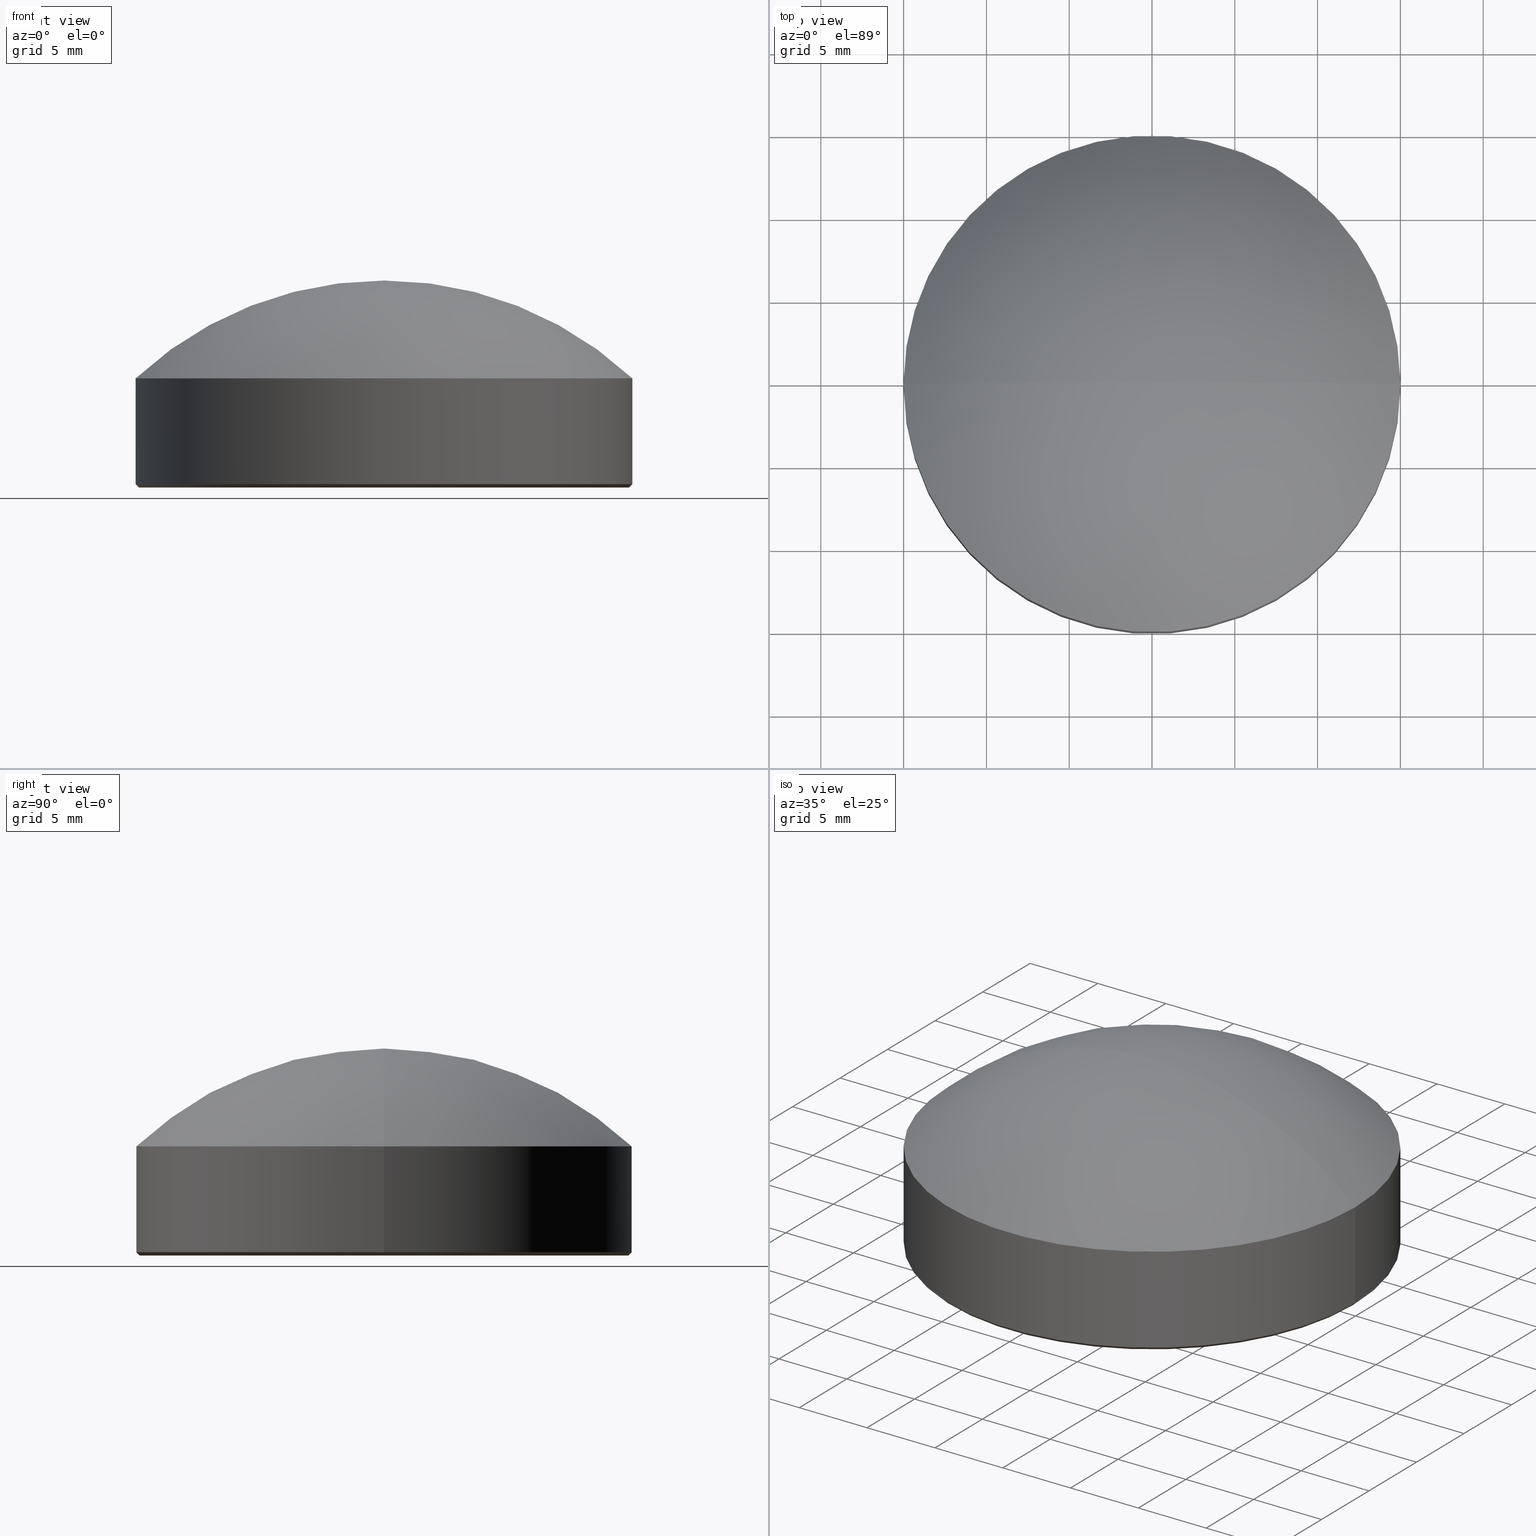
[diagram: canonical four-view strip — front | top / right | iso, engineering-drawing reading convention]
A machine part, canonical four-view strip (front | top / right | iso — engineering-drawing reading convention). The complete STEP part file that produces these views, byte-faithful:
ISO-10303-21;
HEADER;
FILE_DESCRIPTION (( 'STEP AP214' ),
    '1' );
FILE_NAME ('GLA11-030-030-H-VIS.STEP',
    '2024-08-09T08:39:17',
    ( 'Windows User' ),
    ( 'P R C' ),
    'SwSTEP 2.0',
    'SolidWorks 2022',
    '' );
FILE_SCHEMA (( 'AUTOMOTIVE_DESIGN' ));
ENDSEC;

DATA;
#1 = MANIFOLD_SOLID_BREP ( '����1', #129 ) ;
#2 = DIRECTION ( 'NONE',  ( -1.000000000000000000, 0.000000000000000000, 0.000000000000000000 ) ) ;
#3 = AXIS2_PLACEMENT_3D ( 'NONE', #115, #163, #85 ) ;
#4 = DIRECTION ( 'NONE',  ( 1.000000000000000000, 0.000000000000000000, 0.000000000000000000 ) ) ;
#5 = UNCERTAINTY_MEASURE_WITH_UNIT (LENGTH_MEASURE( 1.000000000000000082E-05 ), #164, 'distance_accuracy_value', 'NONE');
#6 = VERTEX_POINT ( 'NONE', #12 ) ;
#7 = ORIENTED_EDGE ( 'NONE', *, *, #154, .T. ) ;
#8 = CIRCLE ( 'NONE', #120, 15.00000000000000000 ) ;
#9 = PRESENTATION_STYLE_ASSIGNMENT (( #109 ) ) ;
#10 = LINE ( 'NONE', #189, #18 ) ;
#11 = DIRECTION ( 'NONE',  ( 1.000000000000000000, 0.000000000000000000, 0.000000000000000000 ) ) ;
#12 = CARTESIAN_POINT ( 'NONE',  ( -14.80000000000000604, 1.824723730729556626E-15, 0.000000000000000000 ) ) ;
#13 = COLOUR_RGB ( '',1.000000000000000000, 1.000000000000000000, 1.000000000000000000 ) ;
#14 = EDGE_CURVE ( 'NONE', #171, #188, #201, .T. ) ;
#15 = DIRECTION ( 'NONE',  ( 1.000000000000000000, 0.000000000000000000, 0.000000000000000000 ) ) ;
#16 = SPHERICAL_SURFACE ( 'NONE', #160, 21.99053299492385349 ) ;
#17 = UNCERTAINTY_MEASURE_WITH_UNIT (LENGTH_MEASURE( 1.000000000000000082E-05 ), #143, 'distance_accuracy_value', 'NONE');
#18 = VECTOR ( 'NONE', #144, 1000.000000000000000 ) ;
#19 = VECTOR ( 'NONE', #64, 1000.000000000000000 ) ;
#20 = LINE ( 'NONE', #213, #19 ) ;
#21 = DIRECTION ( 'NONE',  ( 0.7071067811865414665, 0.000000000000000000, 0.7071067811865536790 ) ) ;
#22 = APPLICATION_CONTEXT ( 'automotive_design' ) ;
#23 = VERTEX_POINT ( 'NONE', #56 ) ;
#24 = ADVANCED_FACE ( 'NONE', ( #192 ), #112, .T. ) ;
#25 = ORIENTED_EDGE ( 'NONE', *, *, #69, .F. ) ;
#26 = CARTESIAN_POINT ( 'NONE',  ( 0.000000000000000000, 0.000000000000000000, 6.589999999999999858 ) ) ;
#27 = EDGE_LOOP ( 'NONE', ( #63, #79, #51 ) ) ;
#28 =( NAMED_UNIT ( * ) SI_UNIT ( $, .STERADIAN. ) SOLID_ANGLE_UNIT ( ) );
#29 = EDGE_CURVE ( 'NONE', #32, #23, #98, .T. ) ;
#30 = DIRECTION ( 'NONE',  ( 1.000000000000000000, 0.000000000000000000, 0.000000000000000000 ) ) ;
#31 = CARTESIAN_POINT ( 'NONE',  ( 0.000000000000000000, 0.000000000000000000, 6.589999999999999858 ) ) ;
#32 = VERTEX_POINT ( 'NONE', #142 ) ;
#33 = FACE_OUTER_BOUND ( 'NONE', #37, .T. ) ;
#34 = DIRECTION ( 'NONE',  ( -0.000000000000000000, -0.000000000000000000, 1.000000000000000000 ) ) ;
#35 = CIRCLE ( 'NONE', #95, 15.00000000000000000 ) ;
#36 = EDGE_CURVE ( 'NONE', #170, #6, #73, .T. ) ;
#37 = EDGE_LOOP ( 'NONE', ( #92, #25, #196, #183 ) ) ;
#38 =( GEOMETRIC_REPRESENTATION_CONTEXT ( 3 ) GLOBAL_UNCERTAINTY_ASSIGNED_CONTEXT ( ( #5 ) ) GLOBAL_UNIT_ASSIGNED_CONTEXT ( ( #164, #182, #59 ) ) REPRESENTATION_CONTEXT ( 'NONE', 'WORKASPACE' ) );
#39 = CIRCLE ( 'NONE', #82, 14.80000000000000604 ) ;
#40 = ORIENTED_EDGE ( 'NONE', *, *, #167, .T. ) ;
#41 = DIRECTION ( 'NONE',  ( 1.000000000000000000, -1.224646799147353207E-16, 0.000000000000000000 ) ) ;
#42 = SURFACE_SIDE_STYLE ('',( #93 ) ) ;
#43 = AXIS2_PLACEMENT_3D ( 'NONE', #31, #176, #96 ) ;
#44 = DIRECTION ( 'NONE',  ( 1.000000000000000000, 0.000000000000000000, 0.000000000000000000 ) ) ;
#45 = CARTESIAN_POINT ( 'NONE',  ( 15.00000000000000000, 1.836970198721029589E-15, 0.1999999999999970690 ) ) ;
#46 = ADVANCED_BREP_SHAPE_REPRESENTATION ( 'GLA11-030-030-H-VIS', ( #1, #117 ), #38 ) ;
#47 = DIRECTION ( 'NONE',  ( 1.000000000000000000, 0.000000000000000000, 0.000000000000000000 ) ) ;
#48 = AXIS2_PLACEMENT_3D ( 'NONE', #204, #128, #41 ) ;
#49 = PRESENTATION_STYLE_ASSIGNMENT (( #138 ) ) ;
#50 = EDGE_CURVE ( 'NONE', #6, #170, #39, .T. ) ;
#51 = ORIENTED_EDGE ( 'NONE', *, *, #154, .F. ) ;
#52 = AXIS2_PLACEMENT_3D ( 'NONE', #149, #131, #197 ) ;
#53 = ORIENTED_EDGE ( 'NONE', *, *, #111, .F. ) ;
#54 = FACE_OUTER_BOUND ( 'NONE', #108, .T. ) ;
#55 = EDGE_LOOP ( 'NONE', ( #71, #72, #7 ) ) ;
#56 = CARTESIAN_POINT ( 'NONE',  ( -15.00000000000000000, 0.000000000000000000, 0.1999999999999970690 ) ) ;
#57 = AXIS2_PLACEMENT_3D ( 'NONE', #77, #133, #199 ) ;
#58 = EDGE_CURVE ( 'NONE', #171, #191, #10, .T. ) ;
#59 =( NAMED_UNIT ( * ) SI_UNIT ( $, .STERADIAN. ) SOLID_ANGLE_UNIT ( ) );
#60 = ORIENTED_EDGE ( 'NONE', *, *, #111, .T. ) ;
#61 = CARTESIAN_POINT ( 'NONE',  ( 0.000000000000000000, 0.000000000000000000, -9.490532994923851717 ) ) ;
#62 = COLOUR_RGB ( '',1.000000000000000000, 1.000000000000000000, 1.000000000000000000 ) ;
#63 = ORIENTED_EDGE ( 'NONE', *, *, #69, .T. ) ;
#64 = DIRECTION ( 'NONE',  ( -0.7071067811865414665, 8.659560562354857670E-17, 0.7071067811865536790 ) ) ;
#65 = ORIENTED_EDGE ( 'NONE', *, *, #203, .F. ) ;
#66 = DIRECTION ( 'NONE',  ( -1.000000000000000000, 0.000000000000000000, 0.000000000000000000 ) ) ;
#67 = DIRECTION ( 'NONE',  ( 0.000000000000000000, 1.000000000000000000, 0.000000000000000000 ) ) ;
#68 = PRODUCT_CONTEXT ( 'NONE', #22, 'mechanical' ) ;
#69 = EDGE_CURVE ( 'NONE', #32, #171, #211, .T. ) ;
#70 = FILL_AREA_STYLE ('',( #86 ) ) ;
#71 = ORIENTED_EDGE ( 'NONE', *, *, #14, .F. ) ;
#72 = ORIENTED_EDGE ( 'NONE', *, *, #161, .T. ) ;
#73 = CIRCLE ( 'NONE', #88, 14.80000000000000604 ) ;
#74 = ADVANCED_FACE ( 'NONE', ( #209 ), #212, .T. ) ;
#75 = CARTESIAN_POINT ( 'NONE',  ( -15.00000000000000000, 0.000000000000000000, 6.589999999999999858 ) ) ;
#76 = DIRECTION ( 'NONE',  ( 0.000000000000000000, 0.000000000000000000, 1.000000000000000000 ) ) ;
#77 = CARTESIAN_POINT ( 'NONE',  ( 0.000000000000000000, 0.000000000000000000, 6.589999999999999858 ) ) ;
#78 = PRESENTATION_LAYER_ASSIGNMENT (  '', '', ( #184 ) ) ;
#79 = ORIENTED_EDGE ( 'NONE', *, *, #14, .T. ) ;
#80 = CARTESIAN_POINT ( 'NONE',  ( 0.000000000000000000, 0.000000000000000000, -9.490532994923851717 ) ) ;
#81 = ADVANCED_FACE ( 'NONE', ( #54 ), #152, .T. ) ;
#82 = AXIS2_PLACEMENT_3D ( 'NONE', #126, #210, #11 ) ;
#83 = AXIS2_PLACEMENT_3D ( 'NONE', #214, #34, #15 ) ;
#84 = DIRECTION ( 'NONE',  ( -0.000000000000000000, -0.000000000000000000, 1.000000000000000000 ) ) ;
#85 = DIRECTION ( 'NONE',  ( 1.000000000000000000, 0.000000000000000000, 0.000000000000000000 ) ) ;
#86 = FILL_AREA_STYLE_COLOUR ( '', #62 ) ;
#87 = AXIS2_PLACEMENT_3D ( 'NONE', #26, #76, #97 ) ;
#88 = AXIS2_PLACEMENT_3D ( 'NONE', #159, #206, #30 ) ;
#89 = PRODUCT_DEFINITION_SHAPE ( 'NONE', 'NONE',  #91 ) ;
#90 = EDGE_LOOP ( 'NONE', ( #106, #113, #175, #158 ) ) ;
#91 = PRODUCT_DEFINITION ( 'δ֪', '', #166, #107 ) ;
#92 = ORIENTED_EDGE ( 'NONE', *, *, #58, .F. ) ;
#93 = SURFACE_STYLE_FILL_AREA ( #208 ) ;
#94 =( GEOMETRIC_REPRESENTATION_CONTEXT ( 3 ) GLOBAL_UNCERTAINTY_ASSIGNED_CONTEXT ( ( #17 ) ) GLOBAL_UNIT_ASSIGNED_CONTEXT ( ( #143, #145, #28 ) ) REPRESENTATION_CONTEXT ( 'NONE', 'WORKASPACE' ) );
#95 = AXIS2_PLACEMENT_3D ( 'NONE', #202, #116, #47 ) ;
#96 = DIRECTION ( 'NONE',  ( -1.000000000000000000, 0.000000000000000000, 0.000000000000000000 ) ) ;
#97 = DIRECTION ( 'NONE',  ( 1.000000000000000000, 0.000000000000000000, 0.000000000000000000 ) ) ;
#98 = LINE ( 'NONE', #75, #168 ) ;
#99 = CARTESIAN_POINT ( 'NONE',  ( 14.80000000000000604, 0.000000000000000000, 0.000000000000000000 ) ) ;
#100 = FACE_OUTER_BOUND ( 'NONE', #55, .T. ) ;
#101 = DIRECTION ( 'NONE',  ( -0.000000000000000000, -1.000000000000000000, 0.000000000000000000 ) ) ;
#102 = FACE_OUTER_BOUND ( 'NONE', #172, .T. ) ;
#103 = ADVANCED_FACE ( 'NONE', ( #100 ), #16, .T. ) ;
#104 =( LENGTH_UNIT ( ) NAMED_UNIT ( * ) SI_UNIT ( .MILLI., .METRE. ) );
#105 = DIRECTION ( 'NONE',  ( 0.000000000000000000, 0.000000000000000000, 1.000000000000000000 ) ) ;
#106 = ORIENTED_EDGE ( 'NONE', *, *, #161, .F. ) ;
#107 = PRODUCT_DEFINITION_CONTEXT ( 'detailed design', #165, 'design' ) ;
#108 = EDGE_LOOP ( 'NONE', ( #179, #127, #60, #124 ) ) ;
#109 = SURFACE_STYLE_USAGE ( .BOTH. , #42 ) ;
#110 = AXIS2_PLACEMENT_3D ( 'NONE', #146, #215, #44 ) ;
#111 = EDGE_CURVE ( 'NONE', #170, #191, #180, .T. ) ;
#112 = CYLINDRICAL_SURFACE ( 'NONE', #43, 15.00000000000000000 ) ;
#113 = ORIENTED_EDGE ( 'NONE', *, *, #58, .T. ) ;
#114 = APPLICATION_PROTOCOL_DEFINITION ( 'draft international standard', 'automotive_design', 1998, #22 ) ;
#115 = CARTESIAN_POINT ( 'NONE',  ( 0.000000000000000000, 0.000000000000000000, 0.1999999999999970690 ) ) ;
#116 = DIRECTION ( 'NONE',  ( -0.000000000000000000, -0.000000000000000000, 1.000000000000000000 ) ) ;
#117 = AXIS2_PLACEMENT_3D ( 'NONE', #151, #105, #4 ) ;
#118 = ORIENTED_EDGE ( 'NONE', *, *, #36, .T. ) ;
#119 = DIRECTION ( 'NONE',  ( 1.000000000000000000, 0.000000000000000000, 0.000000000000000000 ) ) ;
#120 = AXIS2_PLACEMENT_3D ( 'NONE', #181, #84, #119 ) ;
#121 = AXIS2_PLACEMENT_3D ( 'NONE', #147, #101, #66 ) ;
#122 = MECHANICAL_DESIGN_GEOMETRIC_PRESENTATION_REPRESENTATION (  '', ( #184 ), #200 ) ;
#123 = VECTOR ( 'NONE', #21, 1000.000000000000000 ) ;
#124 = ORIENTED_EDGE ( 'NONE', *, *, #205, .F. ) ;
#125 = ADVANCED_FACE ( 'NONE', ( #130 ), #162, .F. ) ;
#126 = CARTESIAN_POINT ( 'NONE',  ( 0.000000000000000000, 0.000000000000000000, 0.000000000000000000 ) ) ;
#127 = ORIENTED_EDGE ( 'NONE', *, *, #36, .F. ) ;
#128 = DIRECTION ( 'NONE',  ( -1.224646799147353207E-16, -1.000000000000000000, -0.000000000000000000 ) ) ;
#129 = CLOSED_SHELL ( 'NONE', ( #177, #74, #24, #186, #125, #103, #81 ) ) ;
#130 = FACE_OUTER_BOUND ( 'NONE', #156, .T. ) ;
#131 = DIRECTION ( 'NONE',  ( 0.000000000000000000, 0.000000000000000000, 1.000000000000000000 ) ) ;
#132 = CARTESIAN_POINT ( 'NONE',  ( 15.00000000000000000, 1.836970198721029589E-15, 6.589999999999999858 ) ) ;
#133 = DIRECTION ( 'NONE',  ( -0.000000000000000000, -0.000000000000000000, -1.000000000000000000 ) ) ;
#134 = DIRECTION ( 'NONE',  ( 0.000000000000000000, 0.000000000000000000, 1.000000000000000000 ) ) ;
#135 = SURFACE_SIDE_STYLE ('',( #185 ) ) ;
#136 = AXIS2_PLACEMENT_3D ( 'NONE', #80, #67, #134 ) ;
#137 = SHAPE_DEFINITION_REPRESENTATION ( #89, #46 ) ;
#138 = SURFACE_STYLE_USAGE ( .BOTH. , #135 ) ;
#139 = ORIENTED_EDGE ( 'NONE', *, *, #50, .T. ) ;
#140 = DIRECTION ( 'NONE',  ( -0.000000000000000000, -0.000000000000000000, -1.000000000000000000 ) ) ;
#141 = FILL_AREA_STYLE_COLOUR ( '', #13 ) ;
#142 = CARTESIAN_POINT ( 'NONE',  ( -15.00000000000000000, 0.000000000000000000, 6.589999999999999858 ) ) ;
#143 =( LENGTH_UNIT ( ) NAMED_UNIT ( * ) SI_UNIT ( .MILLI., .METRE. ) );
#144 = DIRECTION ( 'NONE',  ( -0.000000000000000000, -0.000000000000000000, -1.000000000000000000 ) ) ;
#145 =( NAMED_UNIT ( * ) PLANE_ANGLE_UNIT ( ) SI_UNIT ( $, .RADIAN. ) );
#146 = CARTESIAN_POINT ( 'NONE',  ( 0.000000000000000000, 0.000000000000000000, 6.589999999999999858 ) ) ;
#147 = CARTESIAN_POINT ( 'NONE',  ( 0.000000000000000000, 0.000000000000000000, -9.490532994923851717 ) ) ;
#148 = CIRCLE ( 'NONE', #110, 15.00000000000000000 ) ;
#149 = CARTESIAN_POINT ( 'NONE',  ( 0.000000000000000000, 0.000000000000000000, 0.000000000000000000 ) ) ;
#150 = DIRECTION ( 'NONE',  ( -0.000000000000000000, -1.000000000000000000, 0.000000000000000000 ) ) ;
#151 = CARTESIAN_POINT ( 'NONE',  ( 0.000000000000000000, 0.000000000000000000, 0.000000000000000000 ) ) ;
#152 = CONICAL_SURFACE ( 'NONE', #3, 15.00000000000000000, 0.7853981633974396193 ) ;
#153 =( NAMED_UNIT ( * ) PLANE_ANGLE_UNIT ( ) SI_UNIT ( $, .RADIAN. ) );
#154 = EDGE_CURVE ( 'NONE', #32, #188, #207, .T. ) ;
#155 = ORIENTED_EDGE ( 'NONE', *, *, #50, .F. ) ;
#156 = EDGE_LOOP ( 'NONE', ( #118, #139 ) ) ;
#157 = PRESENTATION_LAYER_ASSIGNMENT (  '', '', ( #195 ) ) ;
#158 = ORIENTED_EDGE ( 'NONE', *, *, #29, .F. ) ;
#159 = CARTESIAN_POINT ( 'NONE',  ( 0.000000000000000000, 0.000000000000000000, 0.000000000000000000 ) ) ;
#160 = AXIS2_PLACEMENT_3D ( 'NONE', #61, #150, #2 ) ;
#161 = EDGE_CURVE ( 'NONE', #171, #32, #148, .T. ) ;
#162 = PLANE ( 'NONE',  #52 ) ;
#163 = DIRECTION ( 'NONE',  ( -0.000000000000000000, -0.000000000000000000, 1.000000000000000000 ) ) ;
#164 =( LENGTH_UNIT ( ) NAMED_UNIT ( * ) SI_UNIT ( .MILLI., .METRE. ) );
#165 = APPLICATION_CONTEXT ( 'automotive_design' ) ;
#166 = PRODUCT_DEFINITION_FORMATION_WITH_SPECIFIED_SOURCE ( '�κ�', '', #174, .NOT_KNOWN. ) ;
#167 = EDGE_CURVE ( 'NONE', #6, #23, #20, .T. ) ;
#168 = VECTOR ( 'NONE', #140, 1000.000000000000000 ) ;
#169 = APPLICATION_PROTOCOL_DEFINITION ( 'draft international standard', 'automotive_design', 1998, #165 ) ;
#170 = VERTEX_POINT ( 'NONE', #99 ) ;
#171 = VERTEX_POINT ( 'NONE', #132 ) ;
#172 = EDGE_LOOP ( 'NONE', ( #155, #40, #65, #53 ) ) ;
#173 = CONICAL_SURFACE ( 'NONE', #83, 15.00000000000000000, 0.7853981633974396193 ) ;
#174 = PRODUCT ( 'GLA11-030-030-H-VIS', 'GLA11-030-030-H-VIS', '', ( #68 ) ) ;
#175 = ORIENTED_EDGE ( 'NONE', *, *, #203, .T. ) ;
#176 = DIRECTION ( 'NONE',  ( -0.000000000000000000, -0.000000000000000000, -1.000000000000000000 ) ) ;
#177 = ADVANCED_FACE ( 'NONE', ( #102 ), #173, .T. ) ;
#178 = MECHANICAL_DESIGN_GEOMETRIC_PRESENTATION_REPRESENTATION (  '', ( #195 ), #94 ) ;
#179 = ORIENTED_EDGE ( 'NONE', *, *, #167, .F. ) ;
#180 = LINE ( 'NONE', #216, #123 ) ;
#181 = CARTESIAN_POINT ( 'NONE',  ( 0.000000000000000000, 0.000000000000000000, 0.1999999999999970690 ) ) ;
#182 =( NAMED_UNIT ( * ) PLANE_ANGLE_UNIT ( ) SI_UNIT ( $, .RADIAN. ) );
#183 = ORIENTED_EDGE ( 'NONE', *, *, #205, .T. ) ;
#184 = STYLED_ITEM ( 'NONE', ( #49 ), #46 ) ;
#185 = SURFACE_STYLE_FILL_AREA ( #70 ) ;
#186 = ADVANCED_FACE ( 'NONE', ( #33 ), #193, .T. ) ;
#187 =( NAMED_UNIT ( * ) SI_UNIT ( $, .STERADIAN. ) SOLID_ANGLE_UNIT ( ) );
#188 = VERTEX_POINT ( 'NONE', #198 ) ;
#189 = CARTESIAN_POINT ( 'NONE',  ( 15.00000000000000000, 1.836970198721029589E-15, 6.589999999999999858 ) ) ;
#190 = PRODUCT_RELATED_PRODUCT_CATEGORY ( 'part', '', ( #174 ) ) ;
#191 = VERTEX_POINT ( 'NONE', #45 ) ;
#192 = FACE_OUTER_BOUND ( 'NONE', #90, .T. ) ;
#193 = CYLINDRICAL_SURFACE ( 'NONE', #57, 15.00000000000000000 ) ;
#194 = UNCERTAINTY_MEASURE_WITH_UNIT (LENGTH_MEASURE( 1.000000000000000082E-05 ), #104, 'distance_accuracy_value', 'NONE');
#195 = STYLED_ITEM ( 'NONE', ( #9 ), #1 ) ;
#196 = ORIENTED_EDGE ( 'NONE', *, *, #29, .T. ) ;
#197 = DIRECTION ( 'NONE',  ( 1.000000000000000000, 0.000000000000000000, -0.000000000000000000 ) ) ;
#198 = CARTESIAN_POINT ( 'NONE',  ( -1.346531792188887738E-15, 0.000000000000000000, 12.50000000000000000 ) ) ;
#199 = DIRECTION ( 'NONE',  ( -1.000000000000000000, 0.000000000000000000, 0.000000000000000000 ) ) ;
#200 =( GEOMETRIC_REPRESENTATION_CONTEXT ( 3 ) GLOBAL_UNCERTAINTY_ASSIGNED_CONTEXT ( ( #194 ) ) GLOBAL_UNIT_ASSIGNED_CONTEXT ( ( #104, #153, #187 ) ) REPRESENTATION_CONTEXT ( 'NONE', 'WORKASPACE' ) );
#201 = CIRCLE ( 'NONE', #48, 21.99053299492385349 ) ;
#202 = CARTESIAN_POINT ( 'NONE',  ( 0.000000000000000000, 0.000000000000000000, 0.1999999999999970690 ) ) ;
#203 = EDGE_CURVE ( 'NONE', #191, #23, #35, .T. ) ;
#204 = CARTESIAN_POINT ( 'NONE',  ( 0.000000000000000000, 0.000000000000000000, -9.490532994923851717 ) ) ;
#205 = EDGE_CURVE ( 'NONE', #23, #191, #8, .T. ) ;
#206 = DIRECTION ( 'NONE',  ( -0.000000000000000000, -0.000000000000000000, -1.000000000000000000 ) ) ;
#207 = CIRCLE ( 'NONE', #136, 21.99053299492385349 ) ;
#208 = FILL_AREA_STYLE ('',( #141 ) ) ;
#209 = FACE_OUTER_BOUND ( 'NONE', #27, .T. ) ;
#210 = DIRECTION ( 'NONE',  ( -0.000000000000000000, -0.000000000000000000, -1.000000000000000000 ) ) ;
#211 = CIRCLE ( 'NONE', #87, 15.00000000000000000 ) ;
#212 = SPHERICAL_SURFACE ( 'NONE', #121, 21.99053299492385349 ) ;
#213 = CARTESIAN_POINT ( 'NONE',  ( -15.00000000000000000, 1.836970198721029589E-15, 0.1999999999999970690 ) ) ;
#214 = CARTESIAN_POINT ( 'NONE',  ( 0.000000000000000000, 0.000000000000000000, 0.1999999999999970690 ) ) ;
#215 = DIRECTION ( 'NONE',  ( 0.000000000000000000, 0.000000000000000000, 1.000000000000000000 ) ) ;
#216 = CARTESIAN_POINT ( 'NONE',  ( 15.00000000000000000, 0.000000000000000000, 0.1999999999999970690 ) ) ;
ENDSEC;
END-ISO-10303-21;
